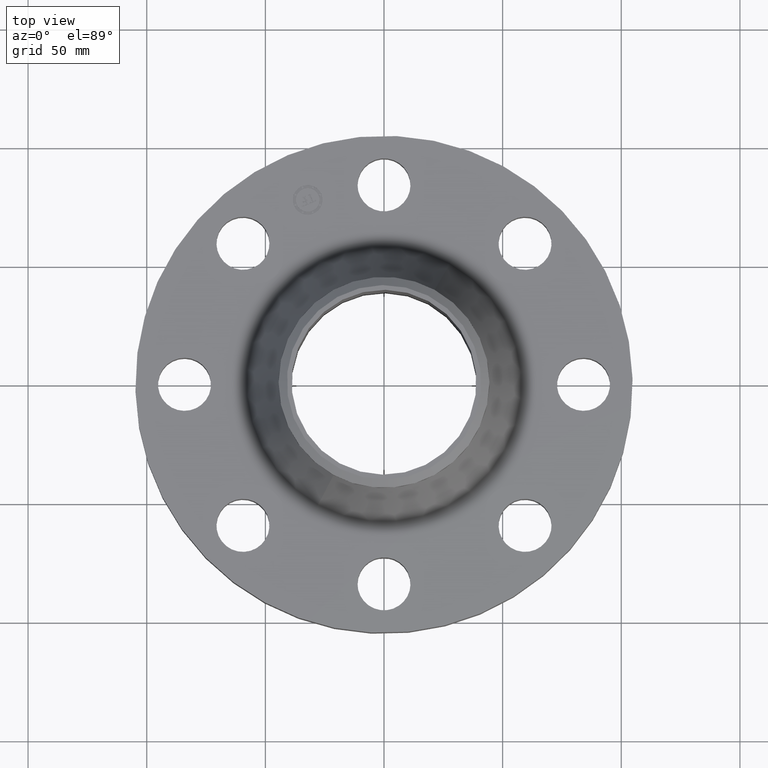
[diagram: clean part render]
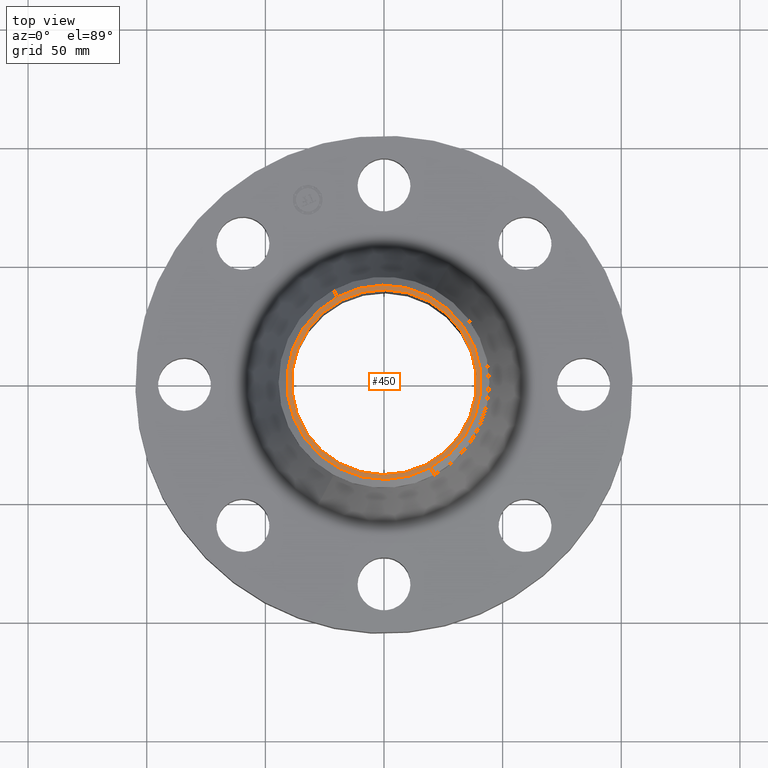
[diagram: same view with one face highlighted and labeled with its STEP entity id]
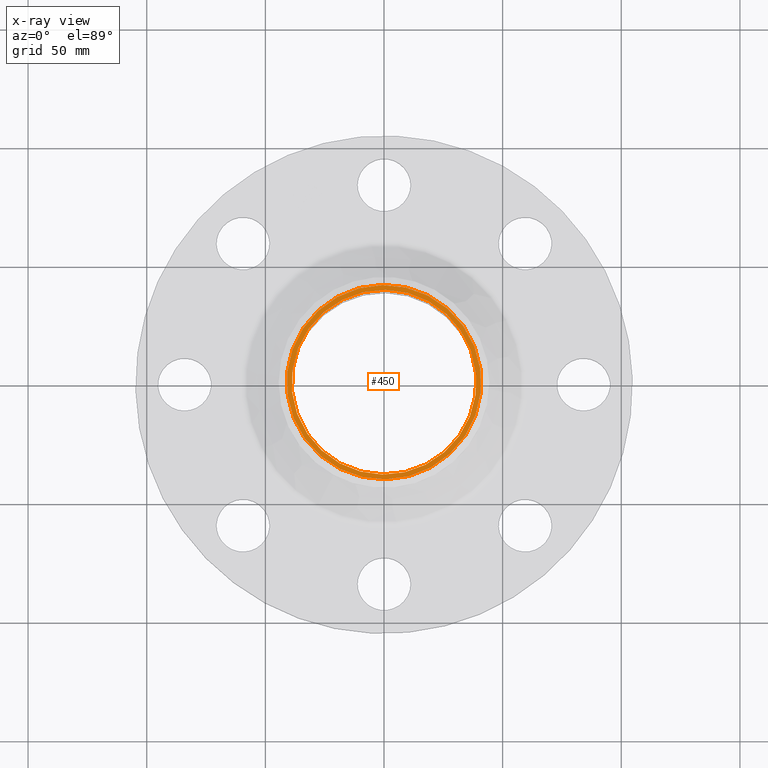
[diagram: x-ray of the same camera — body ghosted, the highlighted face saturated]
A machine part, top view. The second image highlights one B-rep face of the part: STEP entity #450.
The next image is the same camera in x-ray: the body ghosted, the highlighted face saturated — about 0% of this face is hidden behind the body in this view.
In plain terms, the highlighted planar face has unit normal (0, 0, -1).
Its self-contained STEP definition (entity closure, byte-faithful):
#400=AXIS2_PLACEMENT_3D('Circle Axis2P3D',#398,#399,$) ;
#421=AXIS2_PLACEMENT_3D('Plane Axis2P3D',#418,#419,#420) ;
#425=AXIS2_PLACEMENT_3D('Circle Axis2P3D',#423,#424,$) ;
#434=AXIS2_PLACEMENT_3D('Circle Axis2P3D',#432,#433,$) ;
#443=AXIS2_PLACEMENT_3D('Circle Axis2P3D',#441,#442,$) ;
#395=CARTESIAN_POINT('Vertex',(0.773188818632,-1.41531263907,3.06000000001)) ;
#398=CARTESIAN_POINT('Axis2P3D Location',(0.,0.,3.06000000001)) ;
#402=CARTESIAN_POINT('Vertex',(-0.773188818632,1.41531263907,3.06000000001)) ;
#418=CARTESIAN_POINT('Axis2P3D Location',(0.,1.75000000001,3.06000000001)) ;
#423=CARTESIAN_POINT('Axis2P3D Location',(0.,0.,3.06000000001)) ;
#432=CARTESIAN_POINT('Axis2P3D Location',(0.,0.,3.06000000001)) ;
#436=CARTESIAN_POINT('Vertex',(-0.735438776222,-1.34621164995,3.06000000001)) ;
#438=CARTESIAN_POINT('Vertex',(0.735438776222,1.34621164995,3.06000000001)) ;
#441=CARTESIAN_POINT('Axis2P3D Location',(0.,0.,3.06000000001)) ;
#399=DIRECTION('Axis2P3D Direction',(0.,0.,-0.0393700787402)) ;
#419=DIRECTION('Axis2P3D Direction',(0.,0.,-0.0393700787402)) ;
#420=DIRECTION('Axis2P3D XDirection',(0.0393700787402,0.,0.)) ;
#424=DIRECTION('Axis2P3D Direction',(0.,0.,-0.0393700787402)) ;
#433=DIRECTION('Axis2P3D Direction',(0.,0.,-0.0393700787402)) ;
#442=DIRECTION('Axis2P3D Direction',(0.,0.,-0.0393700787402)) ;
#429=ORIENTED_EDGE('',*,*,#427,.T.) ;
#430=ORIENTED_EDGE('',*,*,#404,.T.) ;
#447=ORIENTED_EDGE('',*,*,#440,.T.) ;
#448=ORIENTED_EDGE('',*,*,#445,.T.) ;
#449=FACE_BOUND('',#446,.T.) ;
#450=ADVANCED_FACE('PartBody',(#431,#449),#422,.F.) ;
#401=CIRCLE('generated circle',#400,1.61274015749) ;
#426=CIRCLE('generated circle',#425,1.61274015749) ;
#435=CIRCLE('generated circle',#434,1.53400000001) ;
#444=CIRCLE('generated circle',#443,1.53400000001) ;
#404=EDGE_CURVE('',#403,#396,#401,.F.) ;
#427=EDGE_CURVE('',#396,#403,#426,.F.) ;
#440=EDGE_CURVE('',#437,#439,#435,.T.) ;
#445=EDGE_CURVE('',#439,#437,#444,.T.) ;
#428=EDGE_LOOP('',(#429,#430)) ;
#446=EDGE_LOOP('',(#447,#448)) ;
#431=FACE_OUTER_BOUND('',#428,.T.) ;
#422=PLANE('',#421) ;
#396=VERTEX_POINT('',#395) ;
#403=VERTEX_POINT('',#402) ;
#437=VERTEX_POINT('',#436) ;
#439=VERTEX_POINT('',#438) ;